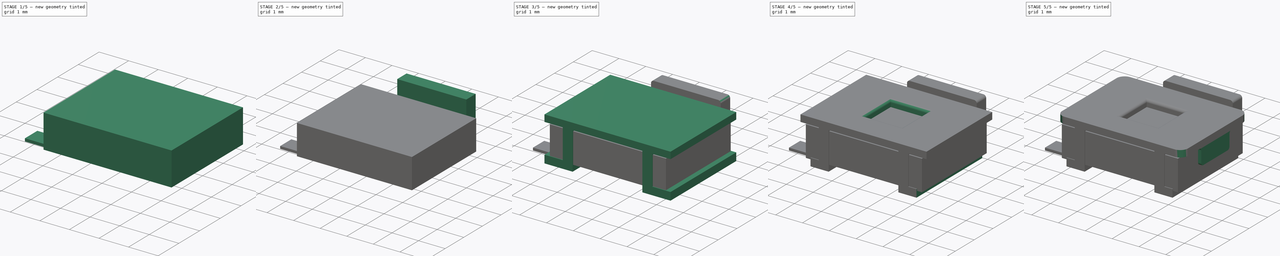
[diagram: build sequence overview — one tinted view per stage of 5, left to right]
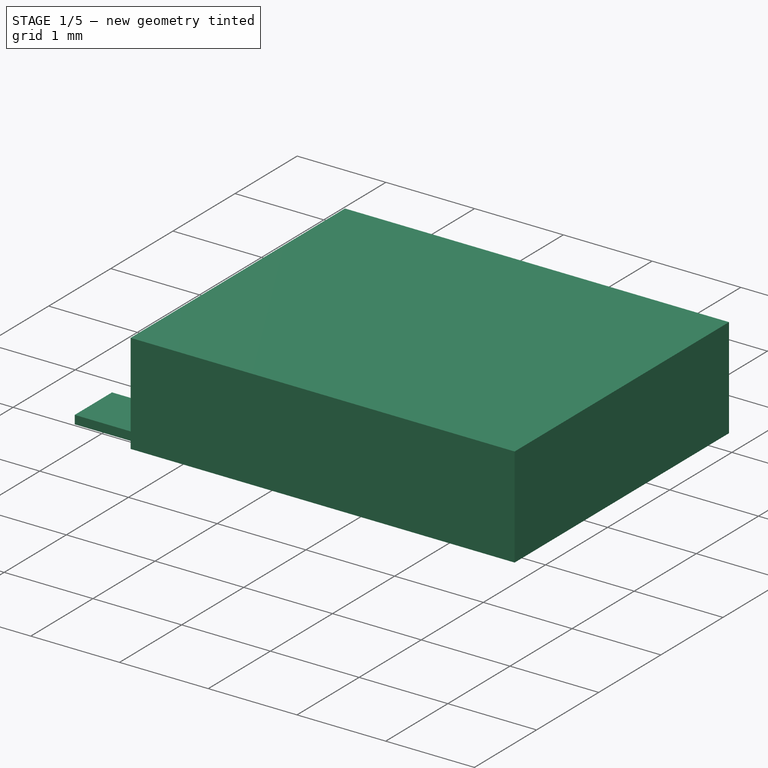
[diagram: stage 1 of 5 — iso view after this stage's code; geometry added in this stage tinted green]
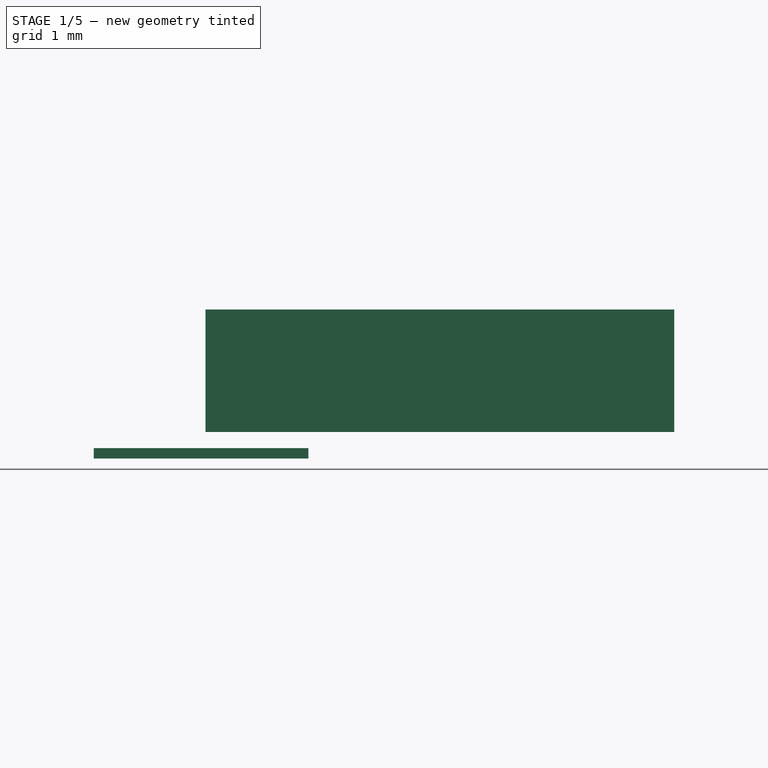
[diagram: stage 1 of 5 — front view after this stage's code; geometry added in this stage tinted green]
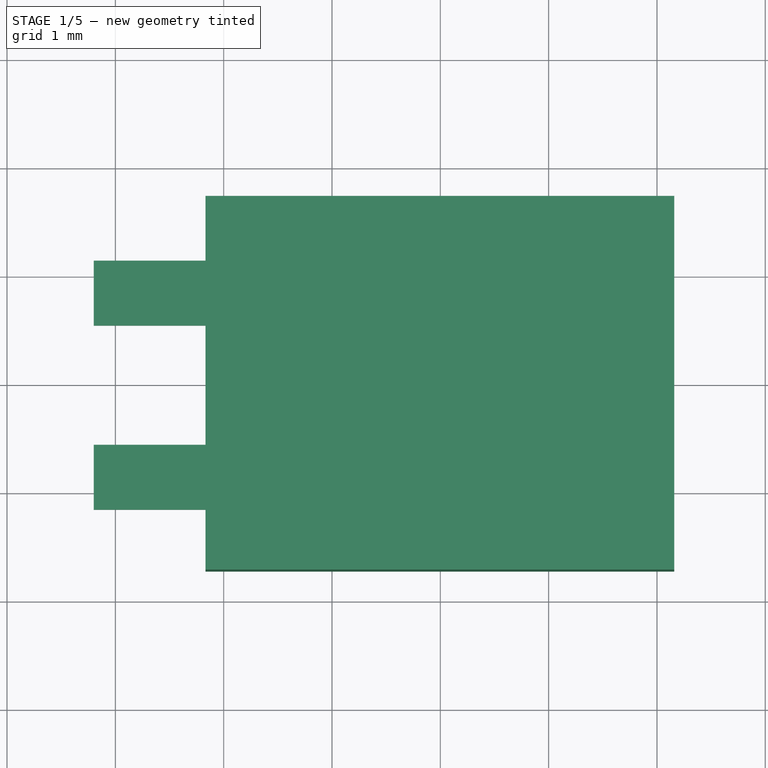
[diagram: stage 1 of 5 — top view after this stage's code; geometry added in this stage tinted green]
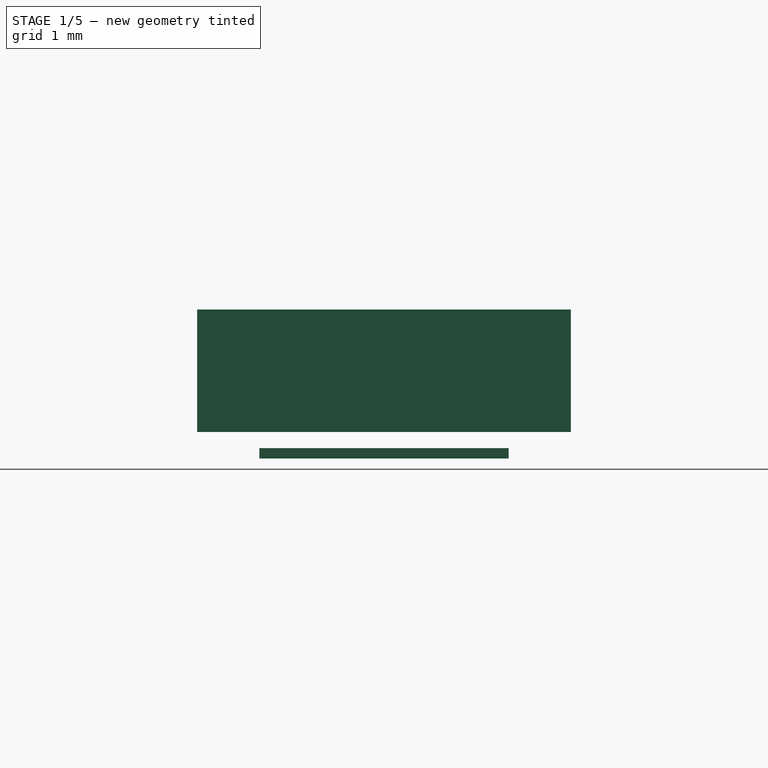
[diagram: stage 1 of 5 — right view after this stage's code; geometry added in this stage tinted green]
FCSTD DOCUMENT  (FreeCAD 0.19R)
Label: EVQPUM02K
License: All rights reserved
LicenseURL: http://en.wikipedia.org/wiki/All_rights_reserved
objects: Sketcher::SketchObject×12, PartDesign::Pad×6, PartDesign::Pocket×6, PartDesign::Mirrored×4, PartDesign::Fillet×4, PartDesign::Body×4, PartDesign::FeatureBase×1, App::Part×1
note: 53 computed .brp shape members not serialized (recipe doc carries the construction recipe); baked Part::Feature solids carry a one-line shape summary decoded from their .brp

FEATURE [PartDesign::Body] Body
  Group = -> [Sketch,Pad,Sketch001,Pocket,Sketch002,Pocket001,Mirrored,Sketch003,Pocket002,Fillet,Sketch004,Pocket003,Mirrored001,Sketch005,Pad001,Mirrored002,Fillet001,Fillet002]
  Origin = -> Origin
  Tip = -> Fillet002
FEATURE [Sketcher::SketchObject] Sketch006
  FullyConstrained = false
  MapMode = 5
  Placement = pos=(0,0,0) rot=(1,0,0;1.5708rad)
  Support = -> [XZ_Plane002]
  sketch-geometry (4):
    g0: LineSegment StartX=-2.16811 StartY=1.35477 StartZ=0 EndX=2.16009 EndY=1.35477 EndZ=0
    g1: LineSegment StartX=2.16009 StartY=1.35477 StartZ=0 EndX=2.16009 EndY=0.223355 EndZ=0
    g2: LineSegment StartX=2.16009 StartY=0.223355 StartZ=0 EndX=-2.16811 EndY=0.223355 EndZ=0
    g3: LineSegment StartX=-2.16811 StartY=0.223355 StartZ=0 EndX=-2.16811 EndY=1.35477 EndZ=0
  constraints (8):
    c: Coincident(g0,g1)
    c: Coincident(g1,g2)
    c: Coincident(g2,g3)
    c: Coincident(g3,g0)
    c: Horizontal(g0)
    c: Horizontal(g2)
    c: Vertical(g1)
    c: Vertical(g3)
FEATURE [PartDesign::Pad] Pad002
  Direction = (1,1,1)
  Length = 3.45
  Length2 = 100
  Midplane = true
  Placement = pos=(0,0,0) rot=(1,0,0;1.5708rad)
  Profile = -> Sketch006
  Type = 0
FEATURE [PartDesign::Body] Body001
  Group = -> [Sketch006,Pad002,Sketch007,Pad003,Sketch008,Pocket004,Mirrored003,Sketch009,Pad004,Fillet003]
  Origin = -> Origin002
  Tip = -> Fillet003
FEATURE [Sketcher::SketchObject] Sketch010
  FullyConstrained = false
  MapMode = 5
  Placement = pos=(0,0,0) rot=(1,0,0;1.5708rad)
  Support = -> [XZ_Plane003]
  sketch-geometry (4):
    g0: LineSegment StartX=-3.2 StartY=0.074301 StartZ=0 EndX=-1.21779 EndY=0.074301 EndZ=0
    g1: LineSegment StartX=-1.21779 StartY=0.074301 StartZ=0 EndX=-1.21779 EndY=-0.021804 EndZ=0
    g2: LineSegment StartX=-1.21779 StartY=-0.021804 StartZ=0 EndX=-3.2 EndY=-0.021804 EndZ=0
    g3: LineSegment StartX=-3.2 StartY=-0.021804 StartZ=0 EndX=-3.2 EndY=0.074301 EndZ=0
  constraints (9):
    c: Coincident(g0,g1)
    c: Coincident(g1,g2)
    c: Coincident(g2,g3)
    c: Coincident(g3,g0)
    c: Horizontal(g0)
    c: Horizontal(g2)
    c: Vertical(g1)
    c: Vertical(g3)
    c: DistanceX(g2) = -3.2
FEATURE [PartDesign::Pad] Pad005
  Direction = (1,1,1)
  Length = 2.3
  Length2 = 100
  Midplane = true
  Placement = pos=(0,0,0) rot=(1,0,0;1.5708rad)
  Profile = -> Sketch010
  Type = 0
FEATURE [Sketcher::SketchObject] Sketch011
  FullyConstrained = false
  MapMode = 5
  Placement = pos=(-3.2,0,0) rot=(0.707107,0,-0.707107;3.14159rad)
  Support = -> [Pad005]
  sketch-geometry (4):
    g0: LineSegment StartX=-0.135249 StartY=0.55 StartZ=0 EndX=0.198015 EndY=0.55 EndZ=0
    g1: LineSegment StartX=0.198015 StartY=0.55 StartZ=0 EndX=0.198015 EndY=-0.55 EndZ=0
    g2: LineSegment StartX=0.198015 StartY=-0.55 StartZ=0 EndX=-0.135249 EndY=-0.55 EndZ=0
    g3: LineSegment StartX=-0.135249 StartY=-0.55 StartZ=0 EndX=-0.135249 EndY=0.55 EndZ=0
  constraints (9):
    c: Coincident(g0,g1)
    c: Coincident(g1,g2)
    c: Coincident(g2,g3)
    c: Coincident(g3,g0)
    c: Horizontal(g0)
    c: Horizontal(g2)
    c: Vertical(g3)
    c: Symmetric(g0,g1,g-1)
    c: Distance(g1) = 1.1
FEATURE [PartDesign::Pocket] Pocket005
  BaseFeature = -> Pad005
  Length = 1.5
  Length2 = 100
  Placement = pos=(0,0,0) rot=(1,0,0;1.5708rad)
  Profile = -> Sketch011
  Type = 0
FEATURE [PartDesign::Body] Body002
  Group = -> [Sketch010,Pad005,Sketch011,Pocket005]
  Origin = -> Origin003
  Tip = -> Pocket005
FEATURE [PartDesign::FeatureBase] Clone
  BaseFeature = -> Body002
FEATURE [PartDesign::Body] Body003
  BaseFeature = -> Body002
  Group = -> [Clone]
  Origin = -> Origin004
  Placement = pos=(0,0,0) rot=(0,0,1;3.14159rad)
  Tip = -> Clone
FEATURE [App::Part] Part
  Group = -> [Body,Body001,Body002,Body003]
  Origin = -> Origin001
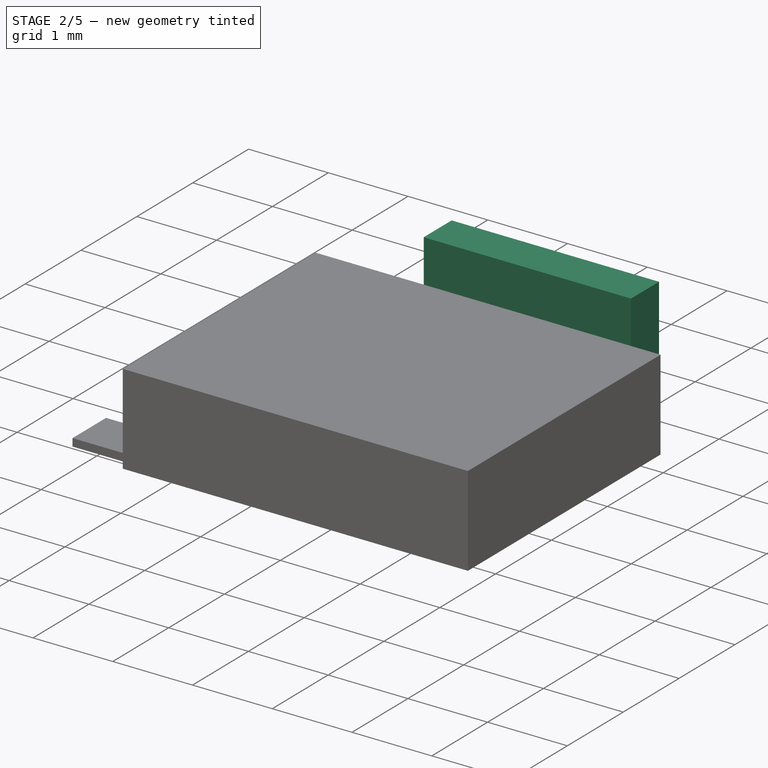
[diagram: stage 2 of 5 — iso view after this stage's code; geometry added in this stage tinted green]
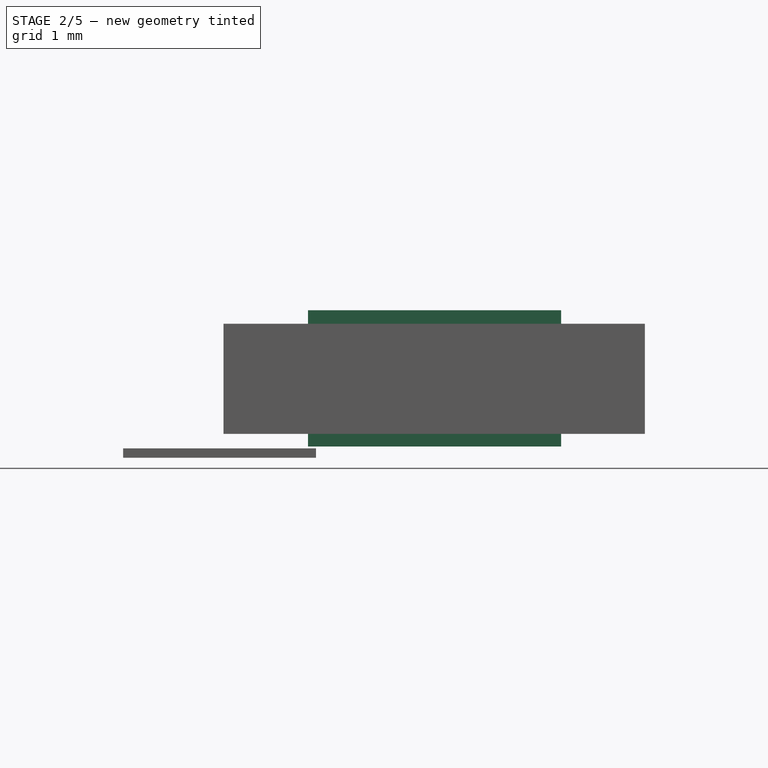
[diagram: stage 2 of 5 — front view after this stage's code; geometry added in this stage tinted green]
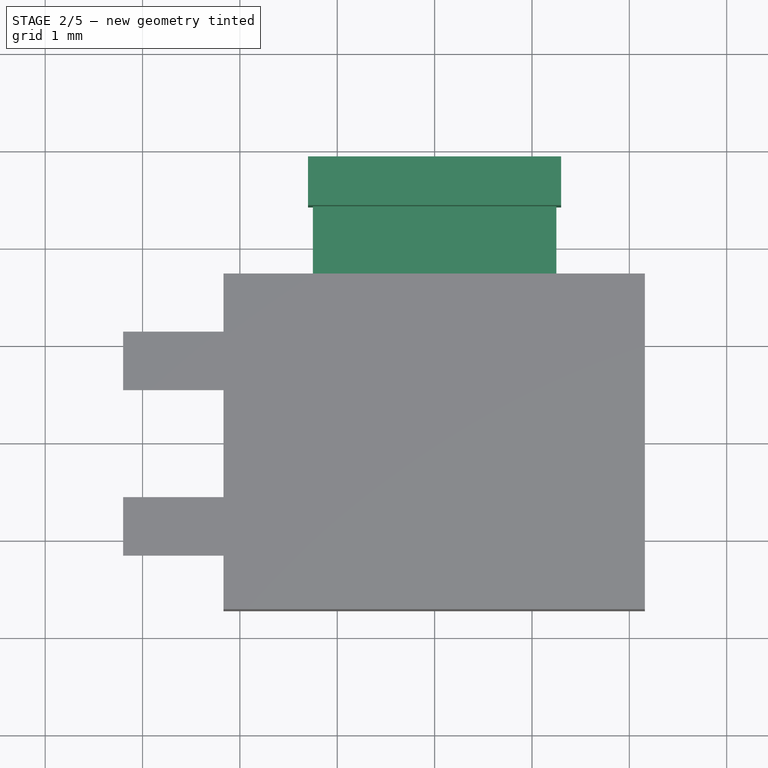
[diagram: stage 2 of 5 — top view after this stage's code; geometry added in this stage tinted green]
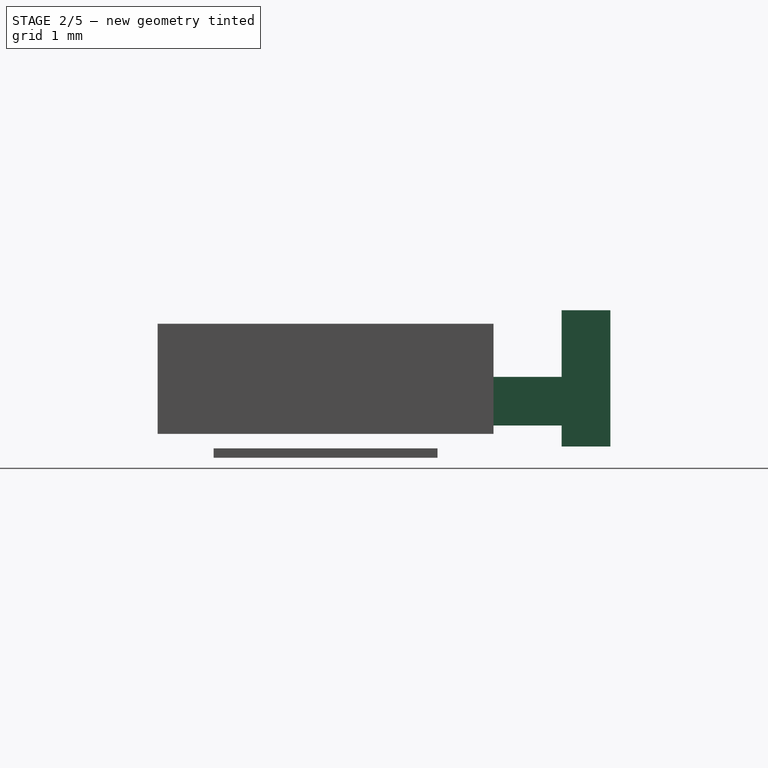
[diagram: stage 2 of 5 — right view after this stage's code; geometry added in this stage tinted green]
FEATURE [Sketcher::SketchObject] Sketch007
  FullyConstrained = false
  MapMode = 5
  Placement = pos=(0,1.725,-8e-16) rot=(-1,0,0;1.5708rad)
  Support = -> [Pad002]
  sketch-geometry (4):
    g0: LineSegment StartX=-1.25 StartY=-0.309306 StartZ=0 EndX=1.25 EndY=-0.309306 EndZ=0
    g1: LineSegment StartX=1.25 StartY=-0.309306 StartZ=0 EndX=1.25 EndY=-0.809306 EndZ=0
    g2: LineSegment StartX=1.25 StartY=-0.809306 StartZ=0 EndX=-1.25 EndY=-0.809306 EndZ=0
    g3: LineSegment StartX=-1.25 StartY=-0.809306 StartZ=0 EndX=-1.25 EndY=-0.309306 EndZ=0
  constraints (10):
    c: Coincident(g0,g1)
    c: Coincident(g1,g2)
    c: Coincident(g2,g3)
    c: Coincident(g3,g0)
    c: Horizontal(g2)
    c: Vertical(g1)
    c: Vertical(g3)
    c: Symmetric(g0,g0,g-2)
    c: Distance(g0) = 2.5
    c: Distance(g1) = 0.5
FEATURE [PartDesign::Pad] Pad003
  BaseFeature = -> Pad002
  Direction = (1,1,1)
  Length = 1.2
  Length2 = 100
  Placement = pos=(0,0,0) rot=(1,0,0;1.5708rad)
  Profile = -> Sketch007
  Type = 0
FEATURE [Sketcher::SketchObject] Sketch008
  FullyConstrained = false
  MapMode = 5
  Placement = pos=(0,2.925,-1.9e-15) rot=(-1,0,0;1.5708rad)
  Support = -> [Pad003]
  sketch-geometry (4):
    g0: LineSegment StartX=-0.648765 StartY=-0.293624 StartZ=0 EndX=-0.289036 EndY=-0.293624 EndZ=0
    g1: LineSegment StartX=-0.289036 StartY=-0.293624 StartZ=0 EndX=-0.289036 EndY=-0.447923 EndZ=0
    g2: LineSegment StartX=-0.289036 StartY=-0.447923 StartZ=0 EndX=-0.648765 EndY=-0.447923 EndZ=0
    g3: LineSegment StartX=-0.648765 StartY=-0.447923 StartZ=0 EndX=-0.648765 EndY=-0.293624 EndZ=0
  constraints (8):
    c: Coincident(g0,g1)
    c: Coincident(g1,g2)
    c: Coincident(g2,g3)
    c: Coincident(g3,g0)
    c: Horizontal(g0)
    c: Horizontal(g2)
    c: Vertical(g1)
    c: Vertical(g3)
FEATURE [PartDesign::Pocket] Pocket004
  BaseFeature = -> Pad003
  Length = 2.5
  Length2 = 100
  Placement = pos=(0,0,0) rot=(1,0,0;1.5708rad)
  Profile = -> Sketch008
  Type = 0
FEATURE [PartDesign::Mirrored] Mirrored003
  BaseFeature = -> Pocket004
  MirrorPlane = -> Sketch008 [V_Axis]
  Originals = -> [Pocket004]
  Placement = pos=(0,0,0) rot=(1,0,0;1.5708rad)
FEATURE [Sketcher::SketchObject] Sketch009
  FullyConstrained = false
  MapMode = 5
  Placement = pos=(0,2.925,-1.9e-15) rot=(-1,0,0;1.5708rad)
  Support = -> [Mirrored003]
  sketch-geometry (4):
    g0: LineSegment StartX=-1.3 StartY=-0.0932322 StartZ=0 EndX=1.3 EndY=-0.0932322 EndZ=0
    g1: LineSegment StartX=1.3 StartY=-0.0932322 StartZ=0 EndX=1.3 EndY=-1.49323 EndZ=0
    g2: LineSegment StartX=1.3 StartY=-1.49323 StartZ=0 EndX=-1.3 EndY=-1.49323 EndZ=0
    g3: LineSegment StartX=-1.3 StartY=-1.49323 StartZ=0 EndX=-1.3 EndY=-0.0932322 EndZ=0
  constraints (10):
    c: Coincident(g0,g1)
    c: Coincident(g1,g2)
    c: Coincident(g2,g3)
    c: Coincident(g3,g0)
    c: Horizontal(g2)
    c: Vertical(g1)
    c: Vertical(g3)
    c: Symmetric(g0,g0,g-2)
    c: Distance(g0) = 2.6
    c: Distance(g1) = 1.4
FEATURE [PartDesign::Pad] Pad004
  BaseFeature = -> Mirrored003
  Direction = (1,1,1)
  Length = 0.5
  Length2 = 100
  Placement = pos=(0,0,0) rot=(1,0,0;1.5708rad)
  Profile = -> Sketch009
  Reversed = true
  Type = 0
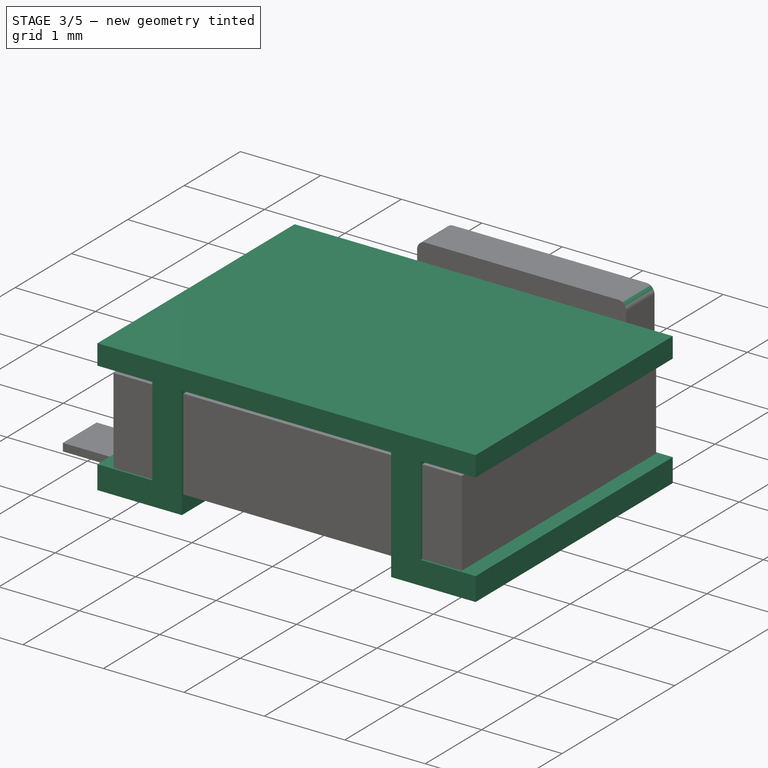
[diagram: stage 3 of 5 — iso view after this stage's code; geometry added in this stage tinted green]
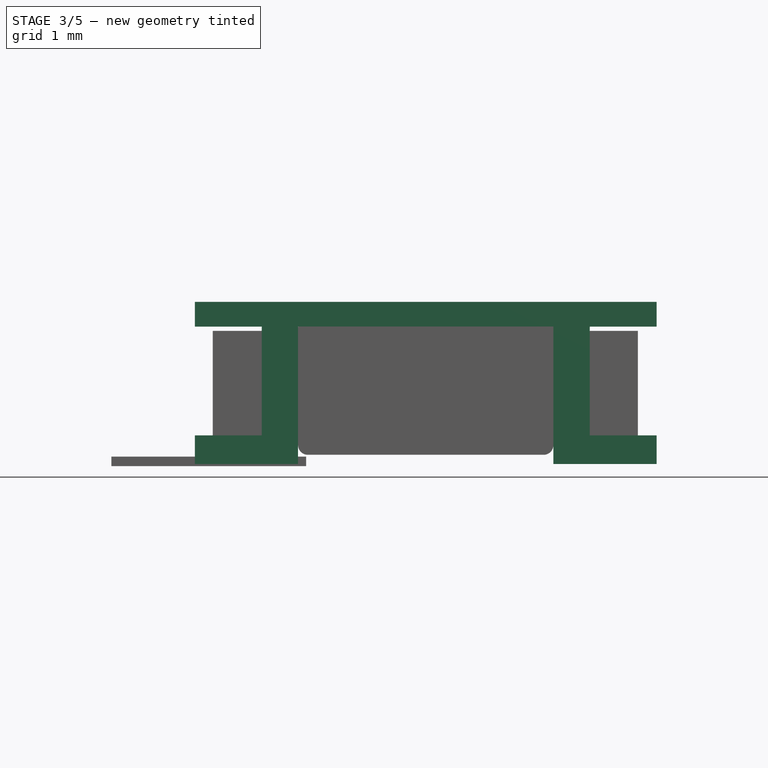
[diagram: stage 3 of 5 — front view after this stage's code; geometry added in this stage tinted green]
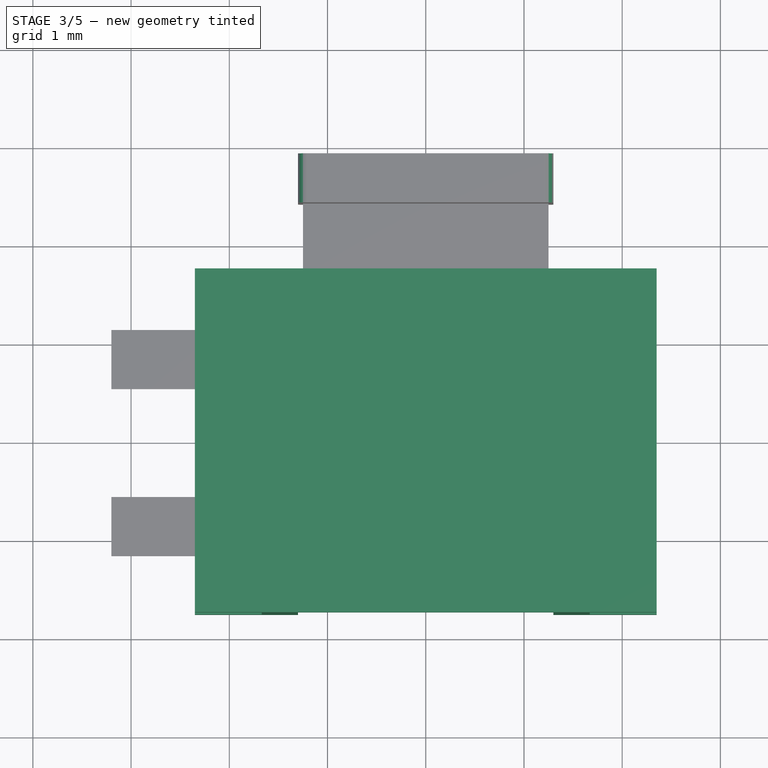
[diagram: stage 3 of 5 — top view after this stage's code; geometry added in this stage tinted green]
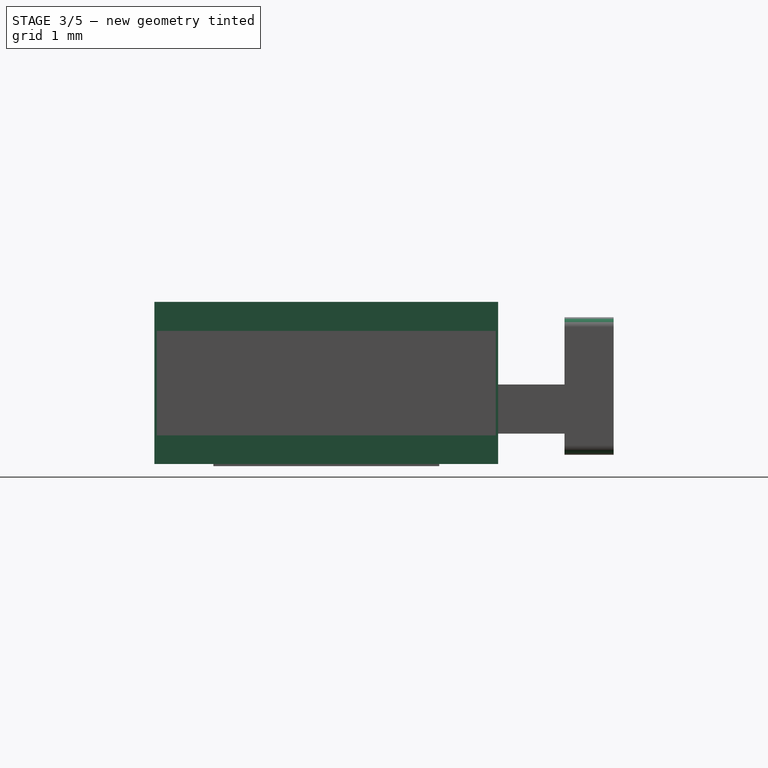
[diagram: stage 3 of 5 — right view after this stage's code; geometry added in this stage tinted green]
FEATURE [Sketcher::SketchObject] Sketch
  FullyConstrained = true
  MapMode = 5
  Support = -> [XY_Plane]
  sketch-geometry (4):
    g0: LineSegment StartX=-2.35 StartY=1.75 StartZ=0 EndX=2.35 EndY=1.75 EndZ=0
    g1: LineSegment StartX=2.35 StartY=1.75 StartZ=0 EndX=2.35 EndY=-1.75 EndZ=0
    g2: LineSegment StartX=2.35 StartY=-1.75 StartZ=0 EndX=-2.35 EndY=-1.75 EndZ=0
    g3: LineSegment StartX=-2.35 StartY=-1.75 StartZ=0 EndX=-2.35 EndY=1.75 EndZ=0
  constraints (11):
    c: Coincident(g0,g1)
    c: Coincident(g1,g2)
    c: Coincident(g2,g3)
    c: Coincident(g3,g0)
    c: Horizontal(g0)
    c: Horizontal(g2)
    c: Vertical(g1)
    c: Vertical(g3)
    c: Symmetric(g1,g0,g-1)
    c: Distance(g0) = 4.7
    c: Distance(g1) = 3.5
FEATURE [PartDesign::Pad] Pad
  Direction = (1,1,1)
  Length = 1.65
  Length2 = 100
  Profile = -> Sketch
  Type = 0
FEATURE [Sketcher::SketchObject] Sketch001
  FullyConstrained = true
  MapMode = 5
  Placement = pos=(0,0,0) rot=(1,0,0;1.5708rad)
  Support = -> [XZ_Plane]
  sketch-geometry (4):
    g0: LineSegment StartX=-1.3 StartY=1.4 StartZ=0 EndX=1.3 EndY=1.4 EndZ=0
    g1: LineSegment StartX=1.3 StartY=1.4 StartZ=0 EndX=1.3 EndY=0 EndZ=0
    g2: LineSegment StartX=1.3 StartY=0 StartZ=0 EndX=-1.3 EndY=0 EndZ=0
    g3: LineSegment StartX=-1.3 StartY=0 StartZ=0 EndX=-1.3 EndY=1.4 EndZ=0
  constraints (11):
    c: Coincident(g0,g1)
    c: Coincident(g1,g2)
    c: Coincident(g2,g3)
    c: Coincident(g3,g0)
    c: Horizontal(g2)
    c: Vertical(g1)
    c: Vertical(g3)
    c: Distance(g0) = 2.6
    c: Symmetric(g0,g0,g-2)
    c: Distance(g1) = 1.4
    c: PointOnObject(g1,g-1)
FEATURE [PartDesign::Pocket] Pocket
  BaseFeature = -> Pad
  Length = 5
  Length2 = 100
  Midplane = true
  Profile = -> Sketch001
  Type = 0
FEATURE [Sketcher::SketchObject] Sketch002
  ExternalGeometry = -> [Pocket]
  FullyConstrained = false
  MapMode = 5
  Placement = pos=(0,0,0) rot=(1,0,0;1.5708rad)
  Support = -> [XZ_Plane]
  sketch-geometry (4):
    g0: LineSegment StartX=2.35 StartY=1.39795 StartZ=0 EndX=1.66916 EndY=1.39795 EndZ=0
    g1: LineSegment StartX=1.66916 StartY=1.39795 StartZ=0 EndX=1.66916 EndY=0.290874 EndZ=0
    g2: LineSegment StartX=1.66916 StartY=0.290874 StartZ=0 EndX=2.35 EndY=0.290874 EndZ=0
    g3: LineSegment StartX=2.35 StartY=0.290874 StartZ=0 EndX=2.35 EndY=1.39795 EndZ=0
  constraints (9):
    c: PointOnObject(g0,g-4)
    c: Horizontal(g0)
    c: Coincident(g0,g1)
    c: Vertical(g1)
    c: Coincident(g1,g2)
    c: Horizontal(g2)
    c: Coincident(g2,g3)
    c: Coincident(g3,g0)
    c: Vertical(g3)
FEATURE [PartDesign::Pocket] Pocket001
  BaseFeature = -> Pocket
  Length = 5
  Length2 = 100
  Midplane = true
  Profile = -> Sketch002
  Type = 0
FEATURE [PartDesign::Mirrored] Mirrored
  BaseFeature = -> Pocket001
  MirrorPlane = -> Sketch002 [V_Axis]
  Originals = -> [Pocket001]
FEATURE [PartDesign::Fillet] Fillet003
  Base = -> Pad004 [Edge70,Edge66,Edge65,Edge68]
  BaseFeature = -> Pad004
  Placement = pos=(0,0,0) rot=(1,0,0;1.5708rad)
  Radius = 0.1
  Refine = true
  SupportTransform = false
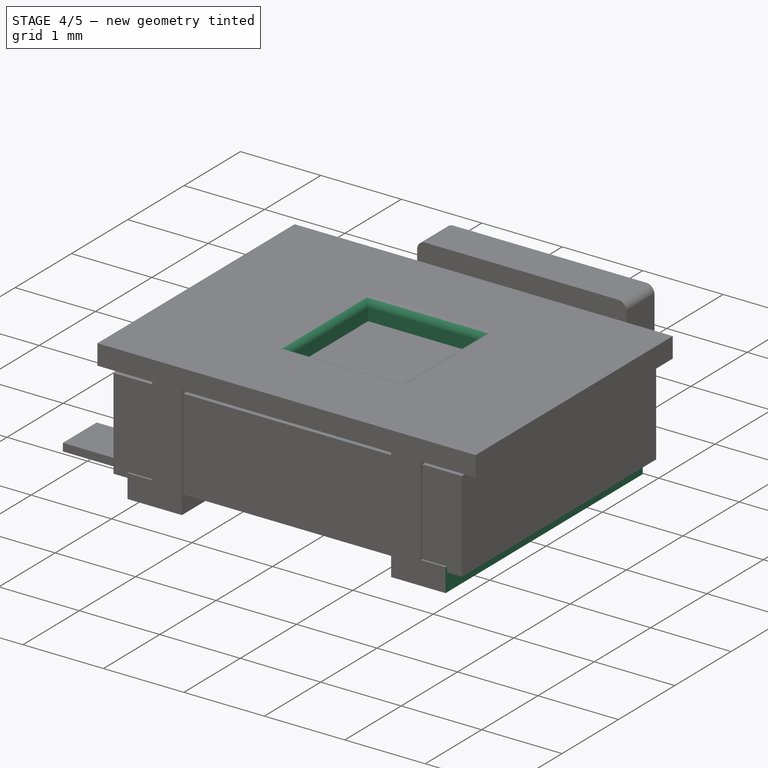
[diagram: stage 4 of 5 — iso view after this stage's code; geometry added in this stage tinted green]
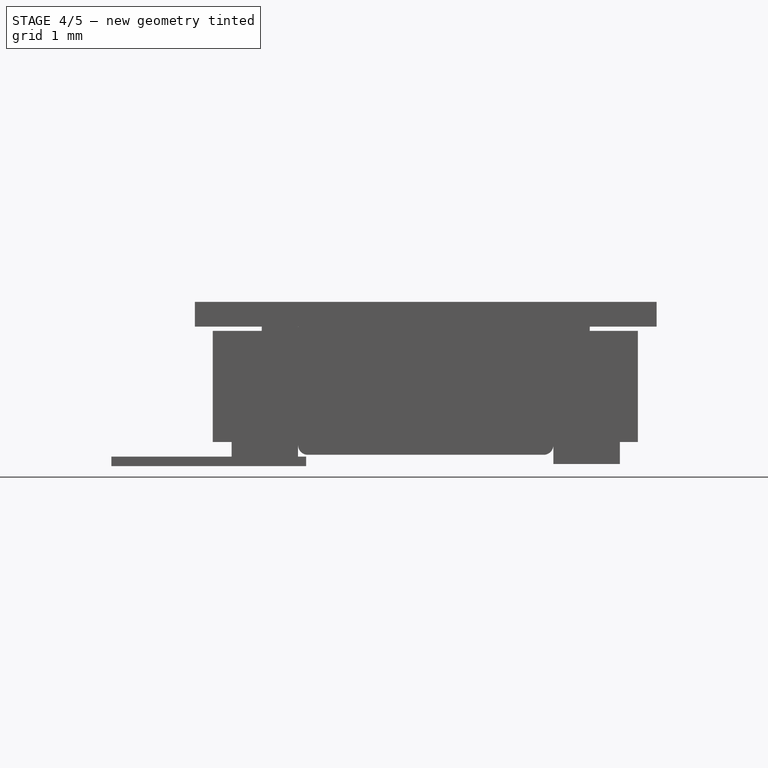
[diagram: stage 4 of 5 — front view after this stage's code; geometry added in this stage tinted green]
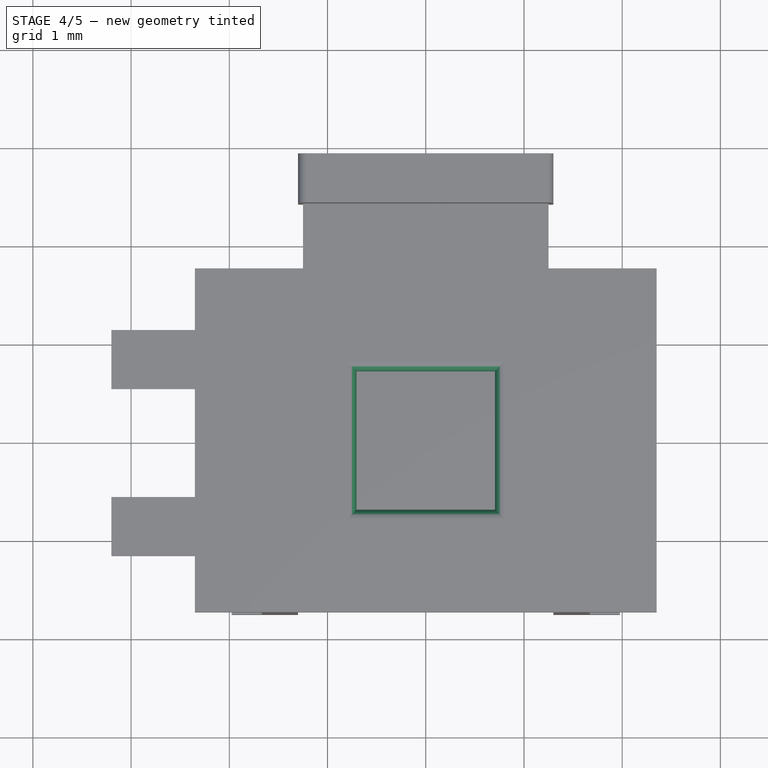
[diagram: stage 4 of 5 — top view after this stage's code; geometry added in this stage tinted green]
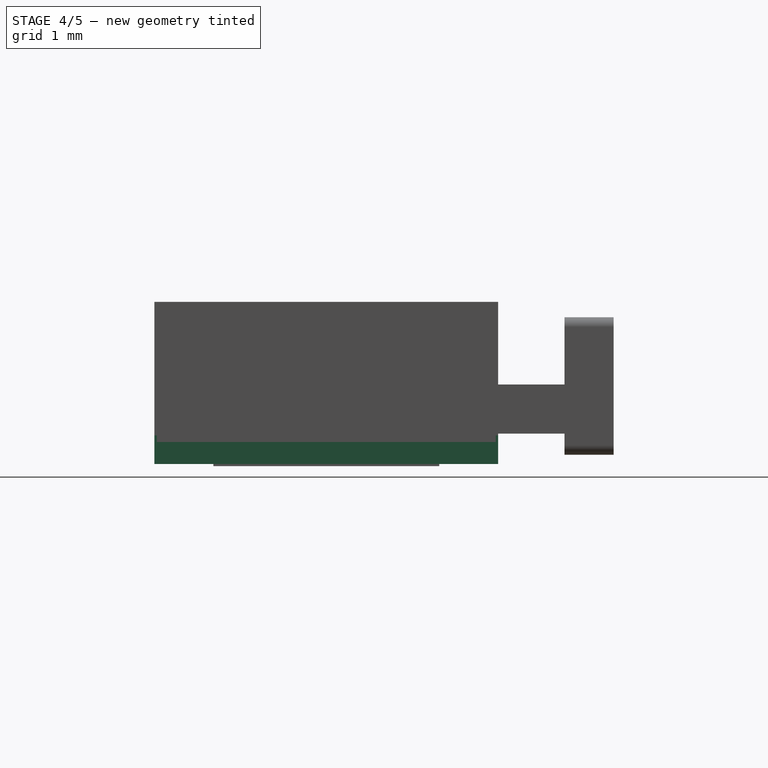
[diagram: stage 4 of 5 — right view after this stage's code; geometry added in this stage tinted green]
FEATURE [Sketcher::SketchObject] Sketch003
  FullyConstrained = false
  MapMode = 5
  Support = -> [XY_Plane]
  sketch-geometry (4):
    g0: LineSegment StartX=-0.705325 StartY=0.705325 StartZ=0 EndX=0.705325 EndY=0.705325 EndZ=0
    g1: LineSegment StartX=0.705325 StartY=0.705325 StartZ=0 EndX=0.705325 EndY=-0.705325 EndZ=0
    g2: LineSegment StartX=0.705325 StartY=-0.705325 StartZ=0 EndX=-0.705325 EndY=-0.705325 EndZ=0
    g3: LineSegment StartX=-0.705325 StartY=-0.705325 StartZ=0 EndX=-0.705325 EndY=0.705325 EndZ=0
  constraints (10):
    c: Coincident(g0,g1)
    c: Coincident(g1,g2)
    c: Coincident(g2,g3)
    c: Coincident(g3,g0)
    c: Horizontal(g0)
    c: Horizontal(g2)
    c: Vertical(g1)
    c: Vertical(g3)
    c: Equal(g1,g0)
    c: Symmetric(g0,g2,g-1)
FEATURE [PartDesign::Pocket] Pocket002
  BaseFeature = -> Mirrored
  Length = 5
  Length2 = 100
  Midplane = true
  Profile = -> Sketch003
  Type = 0
FEATURE [PartDesign::Fillet] Fillet
  Base = -> Pocket002 [Edge47,Edge45,Edge46,Edge44]
  BaseFeature = -> Pocket002
  Radius = 0.1
  SupportTransform = false
FEATURE [Sketcher::SketchObject] Sketch004
  FullyConstrained = false
  MapMode = 5
  Placement = pos=(0,0,0) rot=(1,0,0;1.5708rad)
  Support = -> [XZ_Plane]
  sketch-geometry (4):
    g0: LineSegment StartX=-2.37255 StartY=0.368592 StartZ=0 EndX=-1.97672 EndY=0.368592 EndZ=0
    g1: LineSegment StartX=-1.97672 StartY=0.368592 StartZ=0 EndX=-1.97672 EndY=0 EndZ=0
    g2: LineSegment StartX=-1.97672 StartY=0 StartZ=0 EndX=-2.37255 EndY=0 EndZ=0
    g3: LineSegment StartX=-2.37255 StartY=0 StartZ=0 EndX=-2.37255 EndY=0.368592 EndZ=0
  constraints (9):
    c: Coincident(g0,g1)
    c: Coincident(g1,g2)
    c: Coincident(g2,g3)
    c: Coincident(g3,g0)
    c: Horizontal(g0)
    c: Horizontal(g2)
    c: Vertical(g1)
    c: Vertical(g3)
    c: PointOnObject(g1,g-1)
FEATURE [PartDesign::Pocket] Pocket003
  BaseFeature = -> Fillet
  Length = 5
  Length2 = 100
  Midplane = true
  Profile = -> Sketch004
  Type = 0
FEATURE [PartDesign::Mirrored] Mirrored001
  BaseFeature = -> Pocket003
  MirrorPlane = -> Sketch004 [V_Axis]
  Originals = -> [Pocket003]
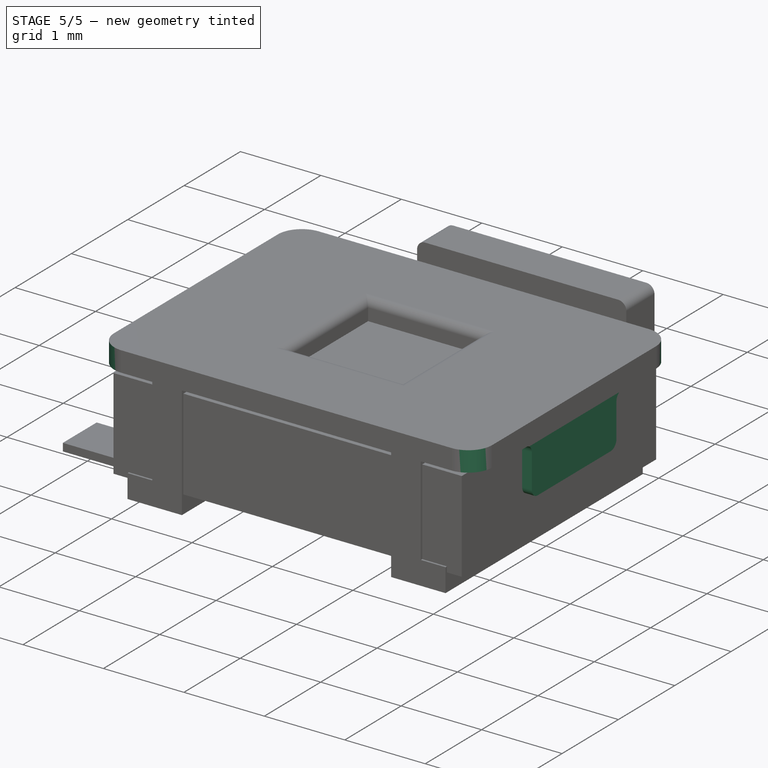
[diagram: stage 5 of 5 — iso view after this stage's code; geometry added in this stage tinted green]
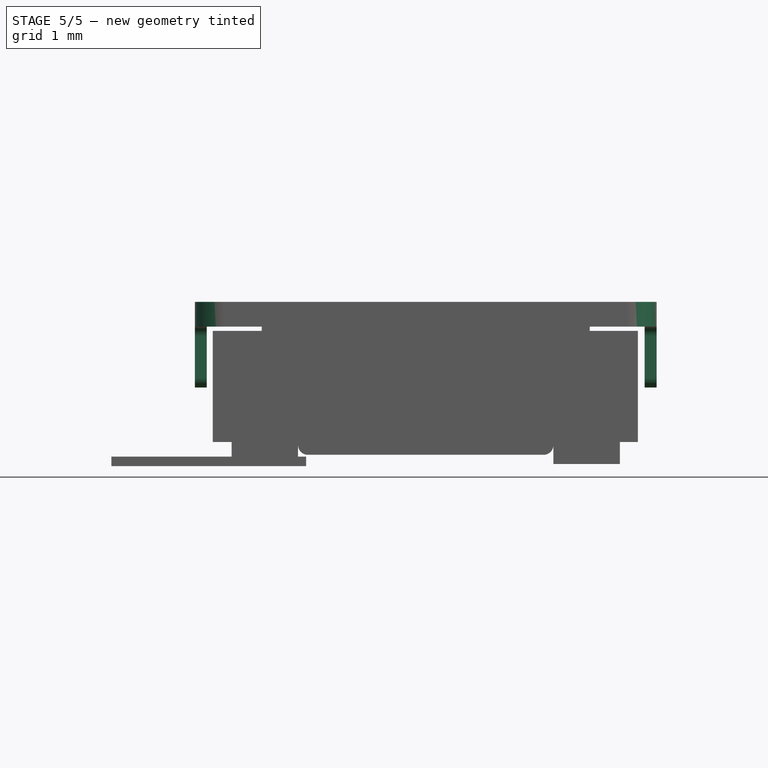
[diagram: stage 5 of 5 — front view after this stage's code; geometry added in this stage tinted green]
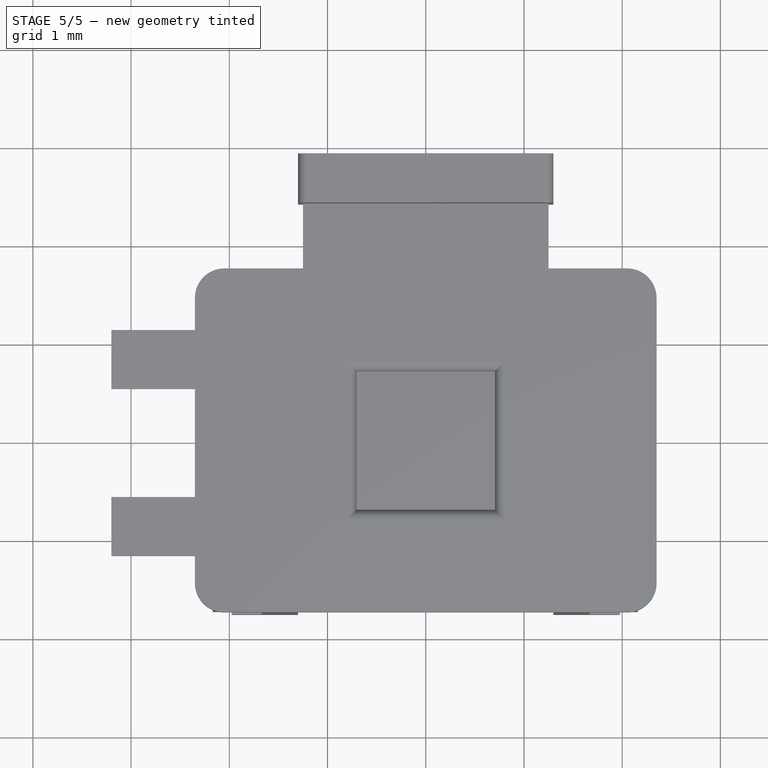
[diagram: stage 5 of 5 — top view after this stage's code; geometry added in this stage tinted green]
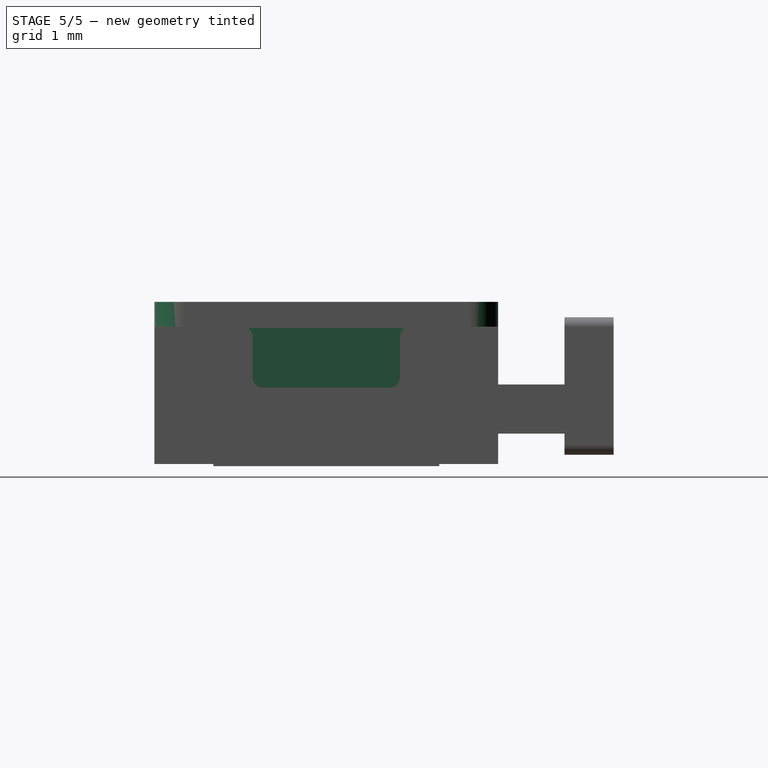
[diagram: stage 5 of 5 — right view after this stage's code; geometry added in this stage tinted green]
FEATURE [Sketcher::SketchObject] Sketch005
  ExternalGeometry = -> [Mirrored001]
  FullyConstrained = false
  MapMode = 5
  Placement = pos=(0,0,0) rot=(1,0,0;1.5708rad)
  Support = -> [XZ_Plane]
  sketch-geometry (4):
    g0: LineSegment StartX=-2.35 StartY=1.39795 StartZ=0 EndX=-2.22902 EndY=1.39795 EndZ=0
    g1: LineSegment StartX=-2.22902 StartY=1.39795 StartZ=0 EndX=-2.22902 EndY=0.77813 EndZ=0
    g2: LineSegment StartX=-2.22902 StartY=0.77813 StartZ=0 EndX=-2.35 EndY=0.77813 EndZ=0
    g3: LineSegment StartX=-2.35 StartY=0.77813 StartZ=0 EndX=-2.35 EndY=1.39795 EndZ=0
  constraints (9):
    c: Coincident(g0,g1)
    c: Coincident(g1,g2)
    c: Coincident(g2,g3)
    c: Coincident(g3,g0)
    c: Horizontal(g0)
    c: Horizontal(g2)
    c: Vertical(g1)
    c: Vertical(g3)
    c: Coincident(g0,g-3)
FEATURE [PartDesign::Pad] Pad001
  BaseFeature = -> Mirrored001
  Direction = (1,1,1)
  Length = 1.5
  Length2 = 100
  Midplane = true
  Profile = -> Sketch005
  Type = 0
FEATURE [PartDesign::Mirrored] Mirrored002
  BaseFeature = -> Pad001
  MirrorPlane = -> Sketch005 [V_Axis]
  Originals = -> [Pad001]
  Refine = true
FEATURE [PartDesign::Fillet] Fillet001
  Base = -> Mirrored002 [Edge73,Edge71,Edge85,Edge89,Edge67,Edge82,Edge78,Edge65]
  BaseFeature = -> Mirrored002
  Radius = 0.1
  SupportTransform = false
FEATURE [PartDesign::Fillet] Fillet002
  Base = -> Fillet001 [Edge54,Edge12,Edge16,Edge32]
  BaseFeature = -> Fillet001
  Radius = 0.3
  SupportTransform = false
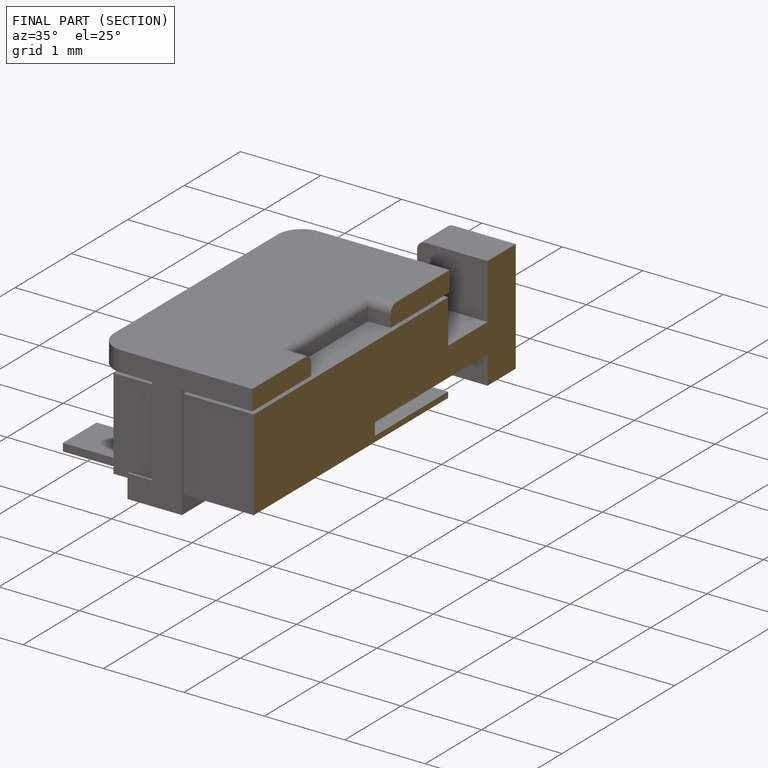
[diagram: finished part — half-section view (interior)]
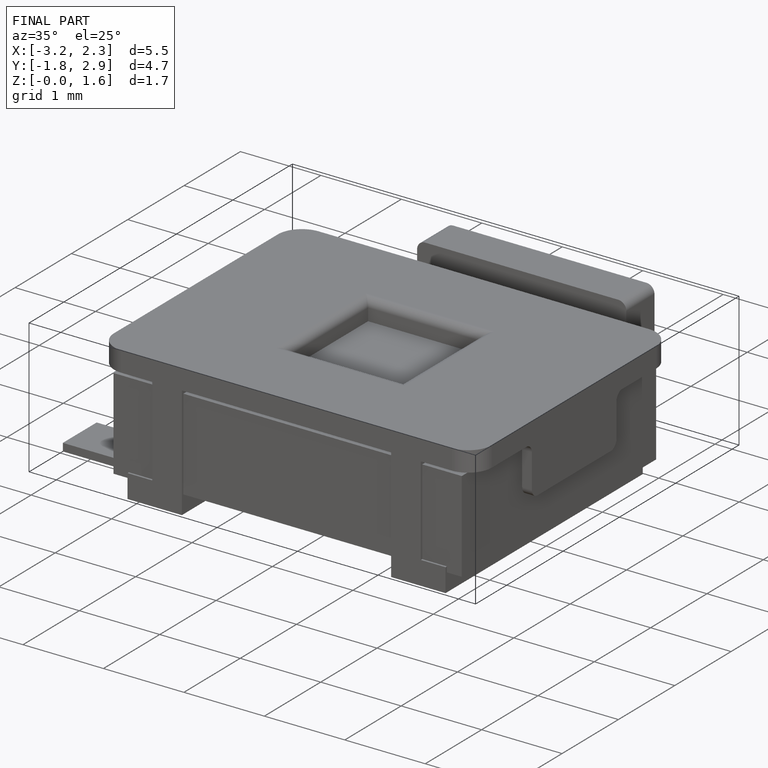
[diagram: finished part — iso view with bounding-box wireframe]
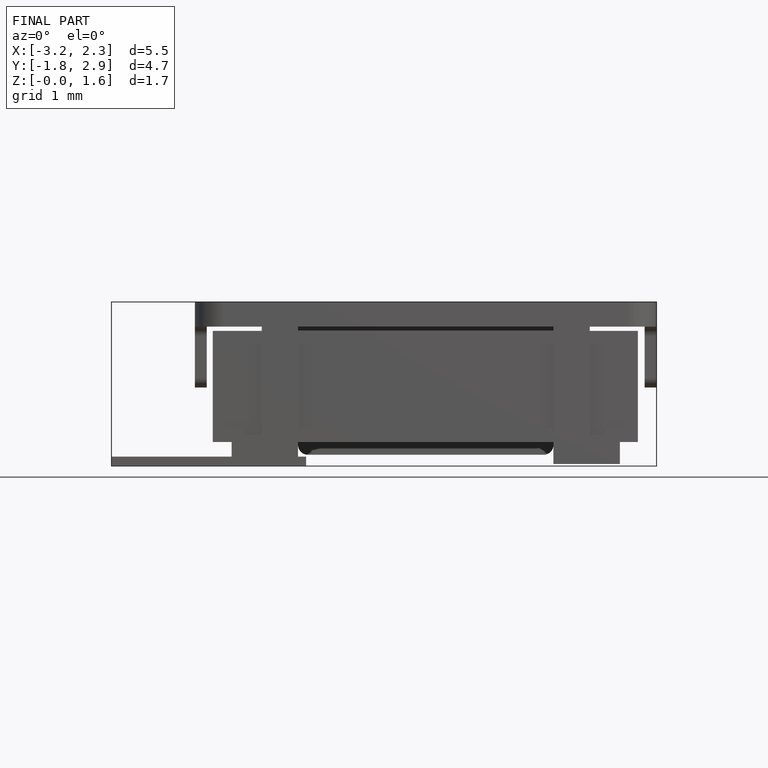
[diagram: finished part — front view with bounding-box wireframe]
